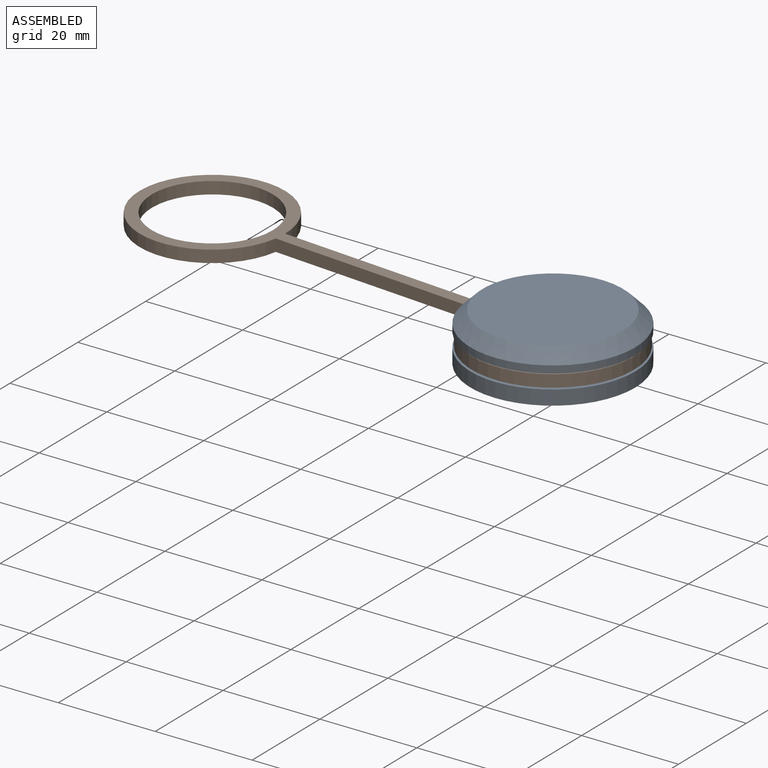
[diagram: assembled view]
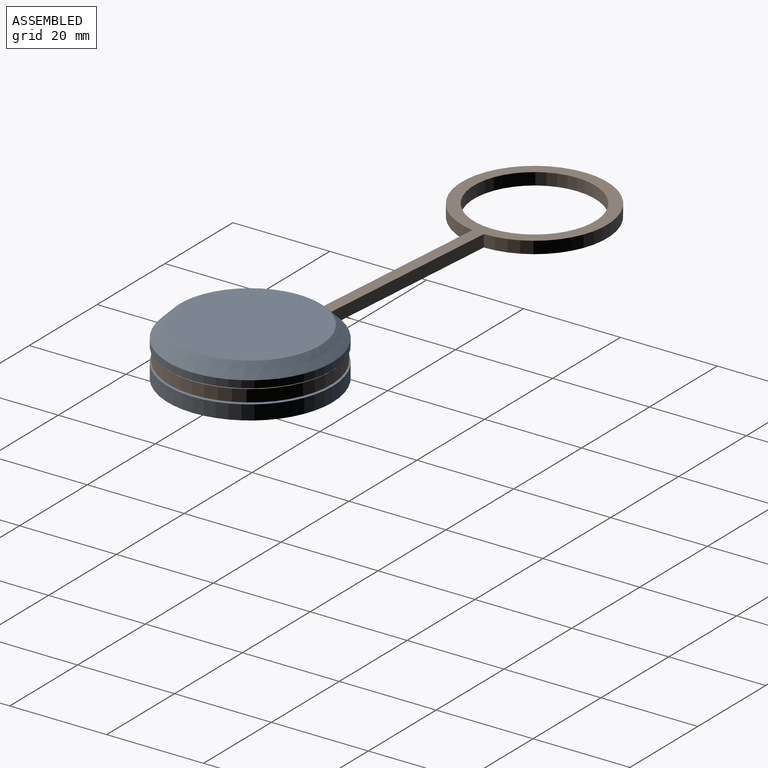
[diagram: assembled view, second angle]
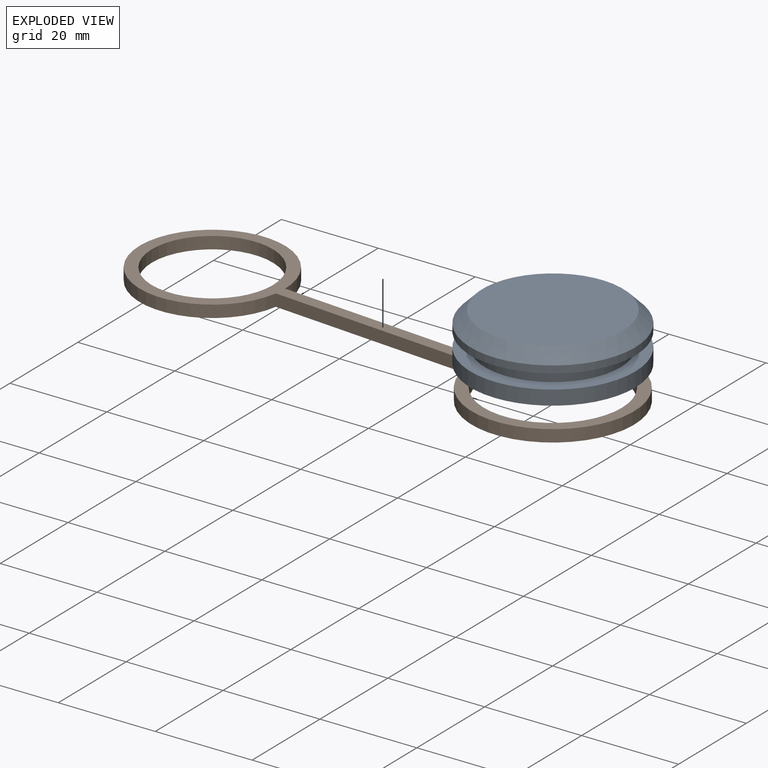
[diagram: exploded view]
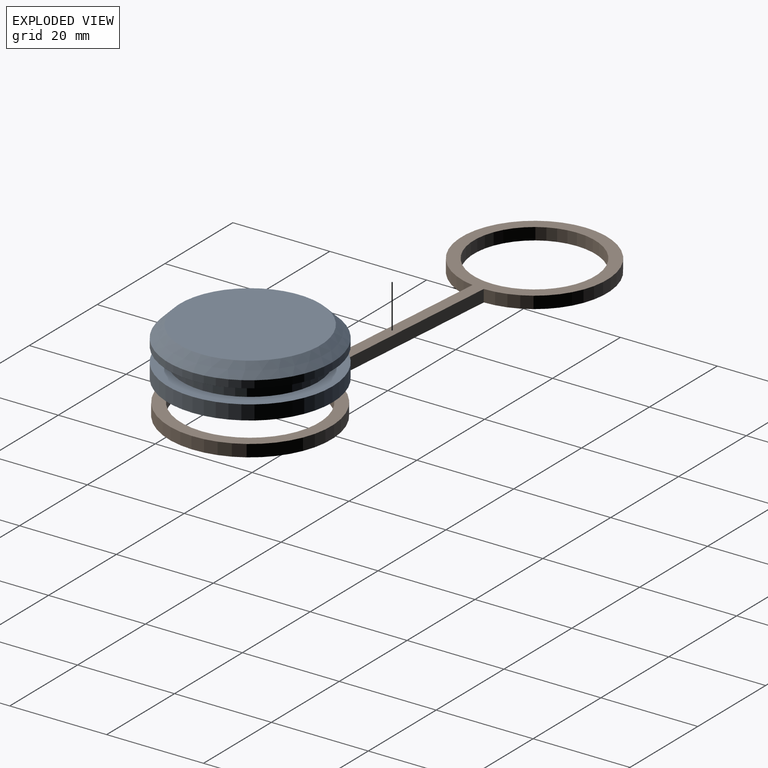
[diagram: exploded view, second angle]
ASSEMBLY  parts=2 mates=2
PART A: 10 faces, bbox 34x34x10 mm
  f0: cylinder r=17mm len=34mm, axis (0,0,-1), area 320.4mm2, adj f1,f3
  f1: plane 34x34mm, normal (0,0,-1), area 335.4mm2, adj f0,f8
  f2: cylinder r=14mm len=28mm, axis (0,0,1), area 263.9mm2, adj f3,f5
  f3: plane 34x34mm, normal (0,0,1), area 292.2mm2, adj f0,f2
  f4: cylinder r=17mm len=34mm, axis (0,0,1), area 160.2mm2, adj f5,f7
  f5: plane 34x34mm, normal (0,0,-1), area 292.2mm2, adj f2,f4
  f6: plane 29x29mm, normal (0,0,1), area 660.5mm2, adj f7
  f7: cone r=14.5mm half-angle=45deg, axis (0,0,-1), area 349.9mm2, adj f4,f6
  f8: cylinder r=13.5mm len=27mm, axis (0,0,-1), area 593.8mm2, adj f1,f9
  f9: plane 27x27mm, normal (0,0,-1), area 572.6mm2, adj f8
PART B: 8 faces, bbox 106.5x38.1x2.5 mm
  f0: plane 43.19x3.51mm, normal (-0.08,-1,0), area 108.3mm2, adj f1,f5,f6,f7
  f1: cylinder r=16.75mm len=33.5mm, axis (0,0,-1), area 256.9mm2, adj f0,f2,f6,f7
  f2: plane 43.23x3.51mm, normal (0.08,1,0), area 108.4mm2, adj f1,f5,f6,f7
  f3: cylinder r=12.5mm len=25mm, axis (0,0,-1), area 196.3mm2, adj f6,f7
  f4: cylinder r=14.25mm len=28.5mm, axis (0,0,-1), area 223.8mm2, adj f6,f7
  f5: cylinder r=15mm len=30mm, axis (0,0,-1), area 229.4mm2, adj f0,f2,f6,f7
  f6: plane 106.48x38.11mm, normal (0,0,1), area 567.7mm2, adj f0,f1,f2,f3,f4,f5
  f7: plane 106.48x38.11mm, normal (0,0,-1), area 567.7mm2, adj f0,f1,f2,f3,f4,f5
PLACE A t=(60.49,27.96,14.94)mm
PLACE B t=(-14.24,34.32,18.19)mm
MATE cylindrical A.f0 <-> B.f1  axis (0,0,1) through (60.49,27.96,19.44)mm
MATE cylindrical A.f0 <-> B.f1  axis (0,0,1) through (60.49,27.96,19.44)mm
